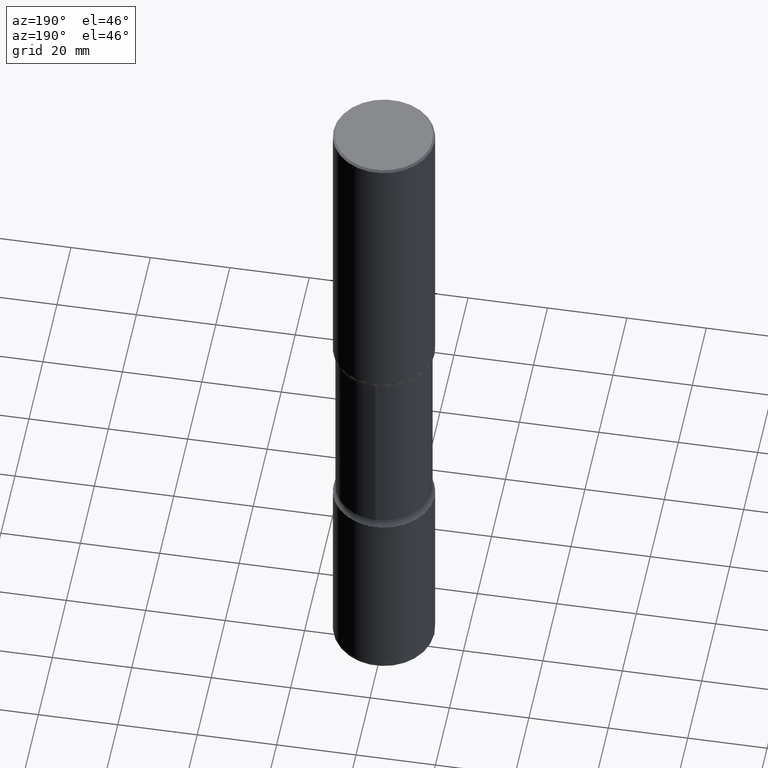
[diagram: clean part render]
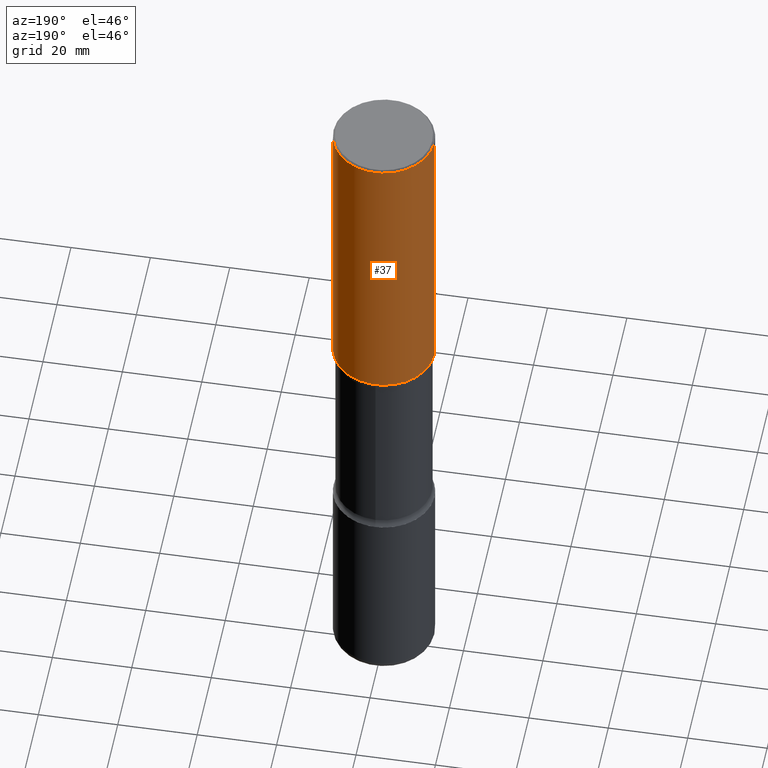
[diagram: same view with one face highlighted and labeled with its STEP entity id]
A machine part, auxiliary view. The second image highlights one B-rep face of the part: STEP entity #37.
In plain terms, the highlighted cylindrical surface (partial cylindrical patch) has radius 12.7 mm, axis along (-0, 0, 1).
Its self-contained STEP definition (entity closure, byte-faithful):
#6 = CARTESIAN_POINT ( 'NONE',  ( -0.5000000000000001110, 3.552713678800501718E-15, -2.459467545127453732E-29 ) ) ;
#9 = DIRECTION ( 'NONE',  ( -2.445468806185136597E-29, 3.491481338843145583E-15, 1.000000000000000000 ) ) ;
#14 = VERTEX_POINT ( 'NONE', #486 ) ;
#35 = VERTEX_POINT ( 'NONE', #270 ) ;
#37 = ADVANCED_FACE ( 'NONE', ( #444 ), #54, .T. ) ;
#40 = AXIS2_PLACEMENT_3D ( 'NONE', #288, #534, #319 ) ;
#54 = CYLINDRICAL_SURFACE ( 'NONE', #484, 0.5000000000000001110 ) ;
#105 = DIRECTION ( 'NONE',  ( -2.445468806185136877E-29, 3.491481338843145188E-15, 1.000000000000000000 ) ) ;
#106 = CARTESIAN_POINT ( 'NONE',  ( 0.5000000000000002220, -1.396592535537256813E-14, -2.999999999999999112 ) ) ;
#108 = CARTESIAN_POINT ( 'NONE',  ( 4.890937612370306439E-31, -6.982962677686338448E-17, -0.02000000000000013572 ) ) ;
#112 = ORIENTED_EDGE ( 'NONE', *, *, #555, .T. ) ;
#117 = AXIS2_PLACEMENT_3D ( 'NONE', #108, #491, #538 ) ;
#155 = VECTOR ( 'NONE', #301, 39.37007874015748143 ) ;
#180 = ORIENTED_EDGE ( 'NONE', *, *, #545, .F. ) ;
#227 = LINE ( 'NONE', #322, #559 ) ;
#231 = DIRECTION ( 'NONE',  ( 1.000000000000000000, -6.982962677686267499E-15, 4.876176775795935793E-29 ) ) ;
#261 = CARTESIAN_POINT ( 'NONE',  ( -0.4999999999999999445, 3.421651712066269663E-15, -0.02000000000000013572 ) ) ;
#270 = CARTESIAN_POINT ( 'NONE',  ( -0.5000000000000002220, -1.719423142852643572E-15, -2.999999999999999112 ) ) ;
#288 = CARTESIAN_POINT ( 'NONE',  ( 7.336406418555407548E-29, -1.047444401652943320E-14, -2.999999999999999112 ) ) ;
#301 = DIRECTION ( 'NONE',  ( -2.445468806185136877E-29, 3.491481338843145188E-15, 1.000000000000000000 ) ) ;
#315 = CIRCLE ( 'NONE', #117, 0.4999999999999999445 ) ;
#319 = DIRECTION ( 'NONE',  ( 1.000000000000000000, -6.982962677686267499E-15, 0.000000000000000000 ) ) ;
#322 = CARTESIAN_POINT ( 'NONE',  ( 0.5000000000000001110, -3.491481338843134539E-15, 2.438088387897968457E-29 ) ) ;
#339 = ORIENTED_EDGE ( 'NONE', *, *, #441, .T. ) ;
#393 = CIRCLE ( 'NONE', #40, 0.5000000000000002220 ) ;
#400 = LINE ( 'NONE', #6, #155 ) ;
#403 = CARTESIAN_POINT ( 'NONE',  ( 0.000000000000000000, 0.000000000000000000, 0.000000000000000000 ) ) ;
#413 = ORIENTED_EDGE ( 'NONE', *, *, #483, .F. ) ;
#441 = EDGE_CURVE ( 'NONE', #35, #499, #400, .T. ) ;
#444 = FACE_OUTER_BOUND ( 'NONE', #490, .T. ) ;
#483 = EDGE_CURVE ( 'NONE', #541, #14, #227, .T. ) ;
#484 = AXIS2_PLACEMENT_3D ( 'NONE', #403, #9, #231 ) ;
#486 = CARTESIAN_POINT ( 'NONE',  ( 0.4999999999999999445, -3.500078625662628685E-15, -0.02000000000000013572 ) ) ;
#490 = EDGE_LOOP ( 'NONE', ( #112, #339, #180, #413 ) ) ;
#491 = DIRECTION ( 'NONE',  ( -2.445468806185136597E-29, 3.491481338843145583E-15, 1.000000000000000000 ) ) ;
#499 = VERTEX_POINT ( 'NONE', #261 ) ;
#534 = DIRECTION ( 'NONE',  ( -2.445468806185136597E-29, 3.491481338843145583E-15, 1.000000000000000000 ) ) ;
#538 = DIRECTION ( 'NONE',  ( 1.000000000000000000, -6.982962677686266711E-15, 0.000000000000000000 ) ) ;
#541 = VERTEX_POINT ( 'NONE', #106 ) ;
#545 = EDGE_CURVE ( 'NONE', #14, #499, #315, .T. ) ;
#555 = EDGE_CURVE ( 'NONE', #541, #35, #393, .T. ) ;
#559 = VECTOR ( 'NONE', #105, 39.37007874015748143 ) ;